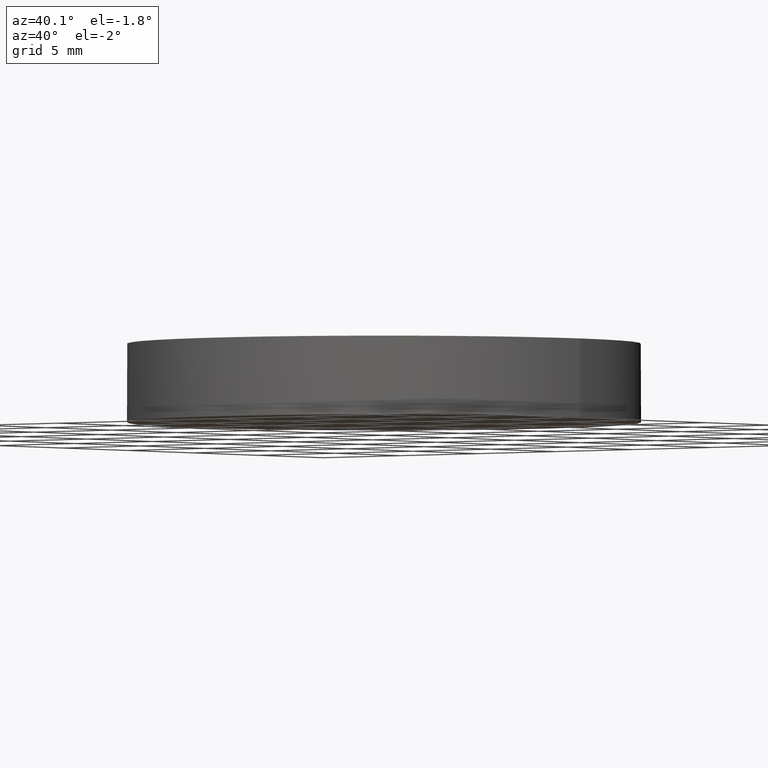
[diagram: clean part render]
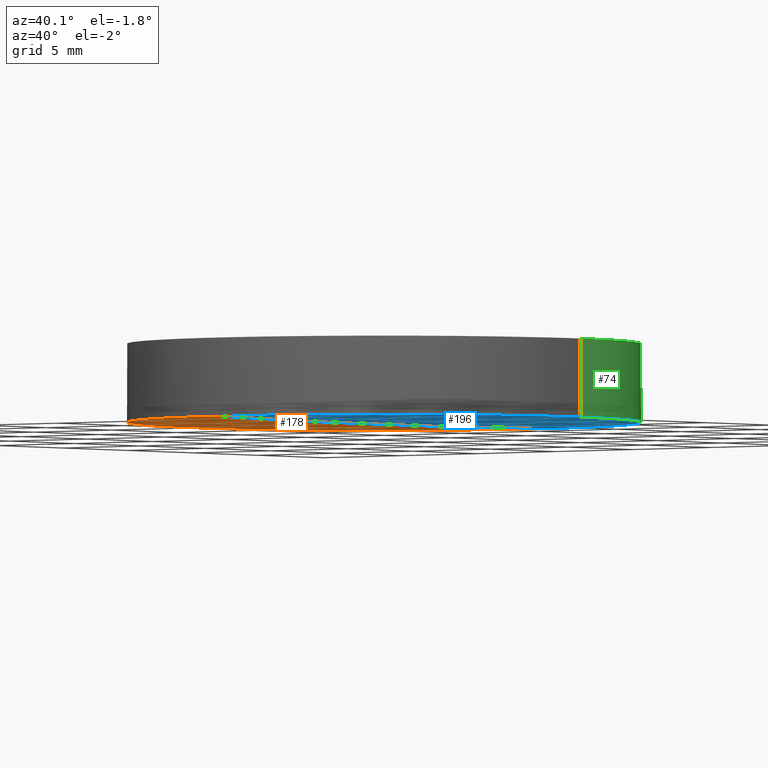
[diagram: same view with three faces highlighted in distinct colors, each labeled with its STEP entity id]
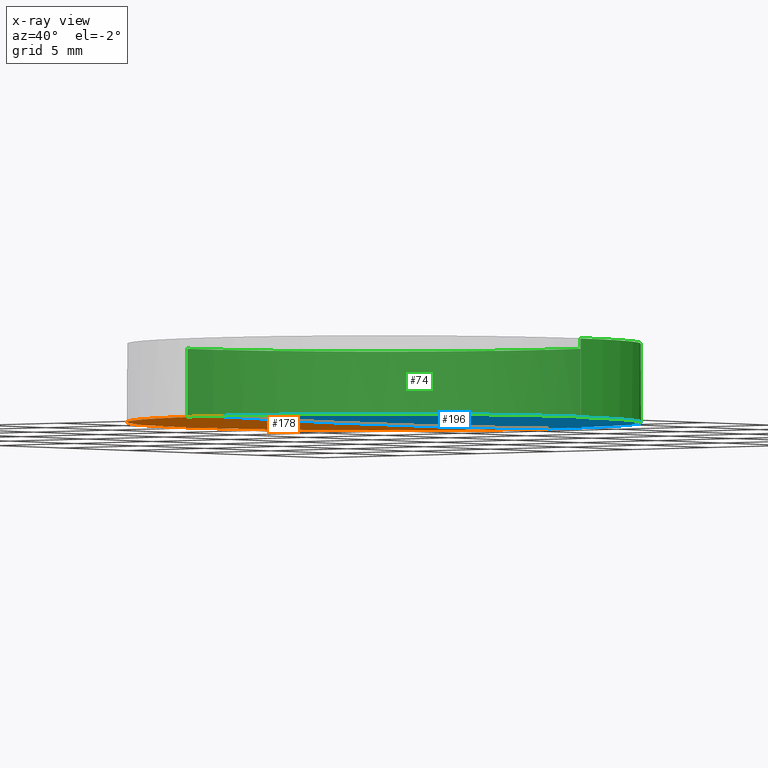
[diagram: x-ray of the same camera — body ghosted, the three highlighted faces saturated]
A machine part, auxiliary view with three faces highlighted in distinct colors.
The next image is the same camera in x-ray (body ghosted, the three faces saturated) — at least one of them is partly hidden behind the body in this view.
Their STEP definitions:

[orange] entity #178 — the highlighted face is a freeform B-spline surface patch.
#6 = CIRCLE ( 'NONE', #223, 12.69999999999999900 ) ;
#7 = CARTESIAN_POINT ( 'NONE',  ( -8.516479223123841500, 12.85238363988632700, 0.1537631259420381100 ) ) ;
#21 = CARTESIAN_POINT ( 'NONE',  ( -4.258324813021966200, 12.85238363988632700, 0.1156680747306574900 ) ) ;
#27 = DIRECTION ( 'NONE',  ( -0.0000000000000000000, -0.0000000000000000000, -1.000000000000000000 ) ) ;
#29 = DIRECTION ( 'NONE',  ( 1.000000000000000000, -8.881784197001252300E-016, 0.0000000000000000000 ) ) ;
#37 = FACE_OUTER_BOUND ( 'NONE', #133, .T. ) ;
#42 = AXIS2_PLACEMENT_3D ( 'NONE', #159, #46, #29 ) ;
#43 = VERTEX_POINT ( 'NONE', #177 ) ;
#46 = DIRECTION ( 'NONE',  ( -0.0000000000000000000, -0.0000000000000000000, -1.000000000000000000 ) ) ;
#49 = DIRECTION ( 'NONE',  ( -3.255406916435471100E-016, -1.000000000000000000, -3.109432921510030800E-016 ) ) ;
#50 = CARTESIAN_POINT ( 'NONE',  ( -12.77412243810388900, -12.85238363988614700, 0.2299501795095526500 ) ) ;
#51 = CARTESIAN_POINT ( 'NONE',  ( -4.259244656794761500, -4.284590551240588000, -0.03856018883012517900 ) ) ;
#53 = CIRCLE ( 'NONE', #60, 714.1000000000000200 ) ;
#57 = CARTESIAN_POINT ( 'NONE',  ( -2.029626466892864300E-013, 12.85238363988632800, 0.1156680747306552400 ) ) ;
#60 = AXIS2_PLACEMENT_3D ( 'NONE', #162, #89, #49 ) ;
#69 = ORIENTED_EDGE ( 'NONE', *, *, #129, .F. ) ;
#70 = CARTESIAN_POINT ( 'NONE',  ( -4.258324813021973300, -12.85238363988614700, 0.1156680747306575200 ) ) ;
#76 = CARTESIAN_POINT ( 'NONE',  ( -2.081668171172168800E-013, 4.284590551240763800, -0.03856018883012413100 ) ) ;
#79 = CARTESIAN_POINT ( 'NONE',  ( -12.77688178538091700, 4.284590551240768300, 0.07574660210754180500 ) ) ;
#89 = DIRECTION ( 'NONE',  ( 1.000000000000000000, -3.255406916435470100E-016, -2.813334110390849800E-016 ) ) ;
#94 = EDGE_CURVE ( 'NONE', #43, #117, #230, .T. ) ;
#112 = CARTESIAN_POINT ( 'NONE',  ( -8.518318873860568600, 4.284590551240767400, -0.0004569086796232828500 ) ) ;
#117 = VERTEX_POINT ( 'NONE', #197 ) ;
#122 = DIRECTION ( 'NONE',  ( 1.000000000000000000, 8.881784197001252300E-016, 0.0000000000000000000 ) ) ;
#124 = CARTESIAN_POINT ( 'NONE',  ( -12.77688178538091900, -4.284590551240584400, 0.07574660210753846000 ) ) ;
#128 = CARTESIAN_POINT ( 'NONE',  ( -2.081668171172168800E-013, -4.284590551240588900, -0.03856018883012743400 ) ) ;
#129 = EDGE_CURVE ( 'NONE', #234, #117, #53, .T. ) ;
#133 = EDGE_LOOP ( 'NONE', ( #69, #195, #180 ) ) ;
#143 = CARTESIAN_POINT ( 'NONE',  ( 4.996003610813200500E-016, 2.442490654175340100E-015, 0.1129412937514580100 ) ) ;
#144 = CARTESIAN_POINT ( 'NONE',  ( -8.516479223123848600, -12.85238363988614700, 0.1537631259420381100 ) ) ;
#157 = EDGE_CURVE ( 'NONE', #234, #43, #6, .T. ) ;
#159 = CARTESIAN_POINT ( 'NONE',  ( 4.996003610813200500E-016, 2.442490654175340100E-015, 0.1129412937514580100 ) ) ;
#162 = CARTESIAN_POINT ( 'NONE',  ( 1.705302565824239900E-013, 2.273736754432320100E-013, 714.1000000000000200 ) ) ;
#168 = CARTESIAN_POINT ( 'NONE',  ( -4.259244656794761500, 4.284590551240766500, -0.03856018883012185500 ) ) ;
#177 = CARTESIAN_POINT ( 'NONE',  ( -12.69999999999999900, 3.997792089092478900E-015, 0.1129412937514580100 ) ) ;
#178 = ADVANCED_FACE ( 'NONE', ( #37 ), #207, .T. ) ;
#180 = ORIENTED_EDGE ( 'NONE', *, *, #94, .T. ) ;
#184 = CARTESIAN_POINT ( 'NONE',  ( -12.77412243810388200, 12.85238363988633200, 0.2299501795095526500 ) ) ;
#186 = CARTESIAN_POINT ( 'NONE',  ( -3.447252486504199500E-014, -12.70000000000168900, 0.1129412937514793200 ) ) ;
#195 = ORIENTED_EDGE ( 'NONE', *, *, #157, .T. ) ;
#197 = CARTESIAN_POINT ( 'NONE',  ( -2.620379129729472800E-014, 12.70000000000191800, 0.1129412937514793200 ) ) ;
#201 = CARTESIAN_POINT ( 'NONE',  ( -2.099015405931936600E-013, -12.85238363988615100, 0.1156680747306552700 ) ) ;
#202 = CARTESIAN_POINT ( 'NONE',  ( -8.518318873860570400, -4.284590551240587100, -0.0004569086796266033800 ) ) ;
#207 =( BOUNDED_SURFACE ( )  B_SPLINE_SURFACE ( 3, 3, ( 
 ( #50, #144, #70, #201 ),
 ( #124, #202, #51, #128 ),
 ( #79, #112, #168, #76 ),
 ( #184, #7, #21, #57 ) ),
 .UNSPECIFIED., .F., .F., .T. ) 
 B_SPLINE_SURFACE_WITH_KNOTS ( ( 4, 4 ),
 ( 4, 4 ),
 ( 0.0000000000000000000, 1.000000000000000000 ),
 ( 0.0000000000000000000, 1.000000000000000000 ),
 .UNSPECIFIED. ) 
 GEOMETRIC_REPRESENTATION_ITEM ( )  RATIONAL_B_SPLINE_SURFACE ( (
 ( 1.000000000000000000, 0.9999733223857783000, 0.9999733223857783000, 1.000000000000000000),
 ( 0.9998920150541654700, 0.9998653403207244900, 0.9998653403207244900, 0.9998920150541654700),
 ( 0.9998920150541654700, 0.9998653403207244900, 0.9998653403207244900, 0.9998920150541654700),
 ( 1.000000000000000000, 0.9999733223857783000, 0.9999733223857783000, 1.000000000000000000) ) ) 
 REPRESENTATION_ITEM ( '' )  SURFACE ( )  );
#223 = AXIS2_PLACEMENT_3D ( 'NONE', #143, #27, #122 ) ;
#230 = CIRCLE ( 'NONE', #42, 12.69999999999999900 ) ;
#234 = VERTEX_POINT ( 'NONE', #186 ) ;

[blue] entity #196 — the highlighted face is a freeform B-spline surface patch.
#5 = CARTESIAN_POINT ( 'NONE',  ( -2.898597193858023400E-014, 4.284590551240764700, -0.03856018883015555800 ) ) ;
#8 = CARTESIAN_POINT ( 'NONE',  ( 12.77688178538097900, -4.284590551240592400, 0.07574660210749215000 ) ) ;
#17 = CARTESIAN_POINT ( 'NONE',  ( 8.516479223123806000, -12.85238363988615100, 0.1537631259419917100 ) ) ;
#32 = CARTESIAN_POINT ( 'NONE',  ( 8.518318873860531300, -4.284590551240591500, -0.0004569086796730478300 ) ) ;
#34 = CARTESIAN_POINT ( 'NONE',  ( 4.258324813021828500, -12.85238363988615100, 0.1156680747306225900 ) ) ;
#49 = DIRECTION ( 'NONE',  ( -3.255406916435471100E-016, -1.000000000000000000, -3.109432921510030800E-016 ) ) ;
#53 = CIRCLE ( 'NONE', #60, 714.1000000000000200 ) ;
#60 = AXIS2_PLACEMENT_3D ( 'NONE', #162, #89, #49 ) ;
#66 = EDGE_CURVE ( 'NONE', #117, #105, #211, .T. ) ;
#71 = CARTESIAN_POINT ( 'NONE',  ( 4.996003610813200500E-016, 2.442490654175340100E-015, 0.1129412937514580100 ) ) ;
#72 = AXIS2_PLACEMENT_3D ( 'NONE', #71, #109, #73 ) ;
#73 = DIRECTION ( 'NONE',  ( 1.000000000000000000, 0.0000000000000000000, 0.0000000000000000000 ) ) ;
#89 = DIRECTION ( 'NONE',  ( 1.000000000000000000, -3.255406916435470100E-016, -2.813334110390849800E-016 ) ) ;
#92 = CARTESIAN_POINT ( 'NONE',  ( 4.259244656794623800, 4.284590551240763800, -0.03856018883015676500 ) ) ;
#95 = FACE_OUTER_BOUND ( 'NONE', #150, .T. ) ;
#105 = VERTEX_POINT ( 'NONE', #106 ) ;
#106 = CARTESIAN_POINT ( 'NONE',  ( 12.69999999999999900, 2.442490654175340100E-015, 0.1129412937514580100 ) ) ;
#109 = DIRECTION ( 'NONE',  ( -0.0000000000000000000, -0.0000000000000000000, -1.000000000000000000 ) ) ;
#117 = VERTEX_POINT ( 'NONE', #197 ) ;
#127 = CARTESIAN_POINT ( 'NONE',  ( 12.77412243810394400, -12.85238363988615400, 0.2299501795095063600 ) ) ;
#129 = EDGE_CURVE ( 'NONE', #234, #117, #53, .T. ) ;
#131 = CARTESIAN_POINT ( 'NONE',  ( 12.77688178538098100, 4.284590551240760300, 0.07574660210749549500 ) ) ;
#142 = CARTESIAN_POINT ( 'NONE',  ( 4.996003610813200500E-016, 2.442490654175340100E-015, 0.1129412937514580100 ) ) ;
#146 = CARTESIAN_POINT ( 'NONE',  ( 4.259244656794620300, -4.284590551240590600, -0.03856018883016010300 ) ) ;
#150 = EDGE_LOOP ( 'NONE', ( #233, #193, #156 ) ) ;
#156 = ORIENTED_EDGE ( 'NONE', *, *, #66, .T. ) ;
#161 = DIRECTION ( 'NONE',  ( 1.000000000000000000, 1.776356839400250500E-015, 0.0000000000000000000 ) ) ;
#162 = CARTESIAN_POINT ( 'NONE',  ( 1.705302565824239900E-013, 2.273736754432320100E-013, 714.1000000000000200 ) ) ;
#165 = EDGE_CURVE ( 'NONE', #105, #234, #170, .T. ) ;
#166 = CARTESIAN_POINT ( 'NONE',  ( 8.518318873860531300, 4.284590551240762900, -0.0004569086796697003100 ) ) ;
#169 =( BOUNDED_SURFACE ( )  B_SPLINE_SURFACE ( 3, 3, ( 
 ( #208, #34, #17, #127 ),
 ( #203, #146, #32, #8 ),
 ( #5, #92, #166, #131 ),
 ( #187, #183, #226, #209 ) ),
 .UNSPECIFIED., .F., .F., .T. ) 
 B_SPLINE_SURFACE_WITH_KNOTS ( ( 4, 4 ),
 ( 4, 4 ),
 ( 0.0000000000000000000, 1.000000000000000000 ),
 ( 0.0000000000000000000, 1.000000000000000000 ),
 .UNSPECIFIED. ) 
 GEOMETRIC_REPRESENTATION_ITEM ( )  RATIONAL_B_SPLINE_SURFACE ( (
 ( 1.000000000000000000, 0.9999733223857783000, 0.9999733223857783000, 1.000000000000000000),
 ( 0.9998920150541654700, 0.9998653403207244900, 0.9998653403207244900, 0.9998920150541654700),
 ( 0.9998920150541654700, 0.9998653403207244900, 0.9998653403207244900, 0.9998920150541654700),
 ( 1.000000000000000000, 0.9999733223857783000, 0.9999733223857783000, 1.000000000000000000) ) ) 
 REPRESENTATION_ITEM ( '' )  SURFACE ( )  );
#170 = CIRCLE ( 'NONE', #72, 12.69999999999999900 ) ;
#181 = DIRECTION ( 'NONE',  ( -0.0000000000000000000, -0.0000000000000000000, -1.000000000000000000 ) ) ;
#183 = CARTESIAN_POINT ( 'NONE',  ( 4.258324813021837400, 12.85238363988632300, 0.1156680747306225900 ) ) ;
#186 = CARTESIAN_POINT ( 'NONE',  ( -3.447252486504199500E-014, -12.70000000000168900, 0.1129412937514793200 ) ) ;
#187 = CARTESIAN_POINT ( 'NONE',  ( -2.615341708717756900E-014, 12.85238363988632800, 0.1156680747306237900 ) ) ;
#193 = ORIENTED_EDGE ( 'NONE', *, *, #129, .T. ) ;
#196 = ADVANCED_FACE ( 'NONE', ( #95 ), #169, .T. ) ;
#197 = CARTESIAN_POINT ( 'NONE',  ( -2.620379129729472800E-014, 12.70000000000191800, 0.1129412937514793200 ) ) ;
#199 = AXIS2_PLACEMENT_3D ( 'NONE', #142, #181, #161 ) ;
#203 = CARTESIAN_POINT ( 'NONE',  ( -3.177558908150082700E-014, -4.284590551240588000, -0.03856018883015888800 ) ) ;
#208 = CARTESIAN_POINT ( 'NONE',  ( -3.452136480597112300E-014, -12.85238363988615100, 0.1156680747306237900 ) ) ;
#209 = CARTESIAN_POINT ( 'NONE',  ( 12.77412243810395300, 12.85238363988632500, 0.2299501795095063600 ) ) ;
#211 = CIRCLE ( 'NONE', #199, 12.69999999999999900 ) ;
#226 = CARTESIAN_POINT ( 'NONE',  ( 8.516479223123813100, 12.85238363988632300, 0.1537631259419917100 ) ) ;
#233 = ORIENTED_EDGE ( 'NONE', *, *, #165, .T. ) ;
#234 = VERTEX_POINT ( 'NONE', #186 ) ;

[green] entity #74 — the highlighted cylindrical surface (partial cylindrical patch) has radius 12.7 mm, axis along (0, 0, 1).
#1 = CARTESIAN_POINT ( 'NONE',  ( -12.69999999999999900, 3.997792089092478900E-015, 0.1129412937514580100 ) ) ;
#3 = CARTESIAN_POINT ( 'NONE',  ( 4.996003610813200500E-016, 2.442490654175340100E-015, 0.1129412937514580100 ) ) ;
#4 = DIRECTION ( 'NONE',  ( 0.0000000000000000000, 0.0000000000000000000, 1.000000000000000000 ) ) ;
#20 = DIRECTION ( 'NONE',  ( 1.000000000000000000, 0.0000000000000000000, 0.0000000000000000000 ) ) ;
#29 = DIRECTION ( 'NONE',  ( 1.000000000000000000, -8.881784197001252300E-016, 0.0000000000000000000 ) ) ;
#30 = CYLINDRICAL_SURFACE ( 'NONE', #213, 12.69999999999999900 ) ;
#41 = VERTEX_POINT ( 'NONE', #47 ) ;
#42 = AXIS2_PLACEMENT_3D ( 'NONE', #159, #46, #29 ) ;
#43 = VERTEX_POINT ( 'NONE', #177 ) ;
#46 = DIRECTION ( 'NONE',  ( -0.0000000000000000000, -0.0000000000000000000, -1.000000000000000000 ) ) ;
#47 = CARTESIAN_POINT ( 'NONE',  ( -12.69999999999999900, 3.997792089092478900E-015, 4.000000000000000000 ) ) ;
#56 = CARTESIAN_POINT ( 'NONE',  ( 4.996003610813200500E-016, 2.442490654175340100E-015, 4.000000000000000000 ) ) ;
#59 = CIRCLE ( 'NONE', #82, 12.69999999999999900 ) ;
#65 = VECTOR ( 'NONE', #179, 1000.000000000000000 ) ;
#66 = EDGE_CURVE ( 'NONE', #117, #105, #211, .T. ) ;
#67 = CARTESIAN_POINT ( 'NONE',  ( 12.69999999999999900, 2.442490654175340100E-015, 4.000000000000000000 ) ) ;
#74 = ADVANCED_FACE ( 'NONE', ( #114 ), #30, .T. ) ;
#75 = CARTESIAN_POINT ( 'NONE',  ( 12.69999999999999900, 2.442490654175340100E-015, 0.1129412937514580100 ) ) ;
#82 = AXIS2_PLACEMENT_3D ( 'NONE', #56, #225, #20 ) ;
#86 = LINE ( 'NONE', #75, #139 ) ;
#94 = EDGE_CURVE ( 'NONE', #43, #117, #230, .T. ) ;
#96 = ORIENTED_EDGE ( 'NONE', *, *, #189, .T. ) ;
#100 = ORIENTED_EDGE ( 'NONE', *, *, #182, .F. ) ;
#102 = EDGE_LOOP ( 'NONE', ( #217, #96, #137, #100, #190 ) ) ;
#105 = VERTEX_POINT ( 'NONE', #106 ) ;
#106 = CARTESIAN_POINT ( 'NONE',  ( 12.69999999999999900, 2.442490654175340100E-015, 0.1129412937514580100 ) ) ;
#114 = FACE_OUTER_BOUND ( 'NONE', #102, .T. ) ;
#117 = VERTEX_POINT ( 'NONE', #197 ) ;
#121 = VERTEX_POINT ( 'NONE', #67 ) ;
#137 = ORIENTED_EDGE ( 'NONE', *, *, #221, .T. ) ;
#139 = VECTOR ( 'NONE', #148, 1000.000000000000000 ) ;
#142 = CARTESIAN_POINT ( 'NONE',  ( 4.996003610813200500E-016, 2.442490654175340100E-015, 0.1129412937514580100 ) ) ;
#148 = DIRECTION ( 'NONE',  ( 0.0000000000000000000, 0.0000000000000000000, 1.000000000000000000 ) ) ;
#159 = CARTESIAN_POINT ( 'NONE',  ( 4.996003610813200500E-016, 2.442490654175340100E-015, 0.1129412937514580100 ) ) ;
#161 = DIRECTION ( 'NONE',  ( 1.000000000000000000, 1.776356839400250500E-015, 0.0000000000000000000 ) ) ;
#176 = LINE ( 'NONE', #1, #65 ) ;
#177 = CARTESIAN_POINT ( 'NONE',  ( -12.69999999999999900, 3.997792089092478900E-015, 0.1129412937514580100 ) ) ;
#179 = DIRECTION ( 'NONE',  ( 0.0000000000000000000, 0.0000000000000000000, 1.000000000000000000 ) ) ;
#181 = DIRECTION ( 'NONE',  ( -0.0000000000000000000, -0.0000000000000000000, -1.000000000000000000 ) ) ;
#182 = EDGE_CURVE ( 'NONE', #105, #121, #86, .T. ) ;
#189 = EDGE_CURVE ( 'NONE', #43, #41, #176, .T. ) ;
#190 = ORIENTED_EDGE ( 'NONE', *, *, #66, .F. ) ;
#197 = CARTESIAN_POINT ( 'NONE',  ( -2.620379129729472800E-014, 12.70000000000191800, 0.1129412937514793200 ) ) ;
#199 = AXIS2_PLACEMENT_3D ( 'NONE', #142, #181, #161 ) ;
#211 = CIRCLE ( 'NONE', #199, 12.69999999999999900 ) ;
#213 = AXIS2_PLACEMENT_3D ( 'NONE', #3, #4, #220 ) ;
#217 = ORIENTED_EDGE ( 'NONE', *, *, #94, .F. ) ;
#220 = DIRECTION ( 'NONE',  ( 1.000000000000000000, 0.0000000000000000000, 0.0000000000000000000 ) ) ;
#221 = EDGE_CURVE ( 'NONE', #41, #121, #59, .T. ) ;
#225 = DIRECTION ( 'NONE',  ( -0.0000000000000000000, -0.0000000000000000000, -1.000000000000000000 ) ) ;
#230 = CIRCLE ( 'NONE', #42, 12.69999999999999900 ) ;